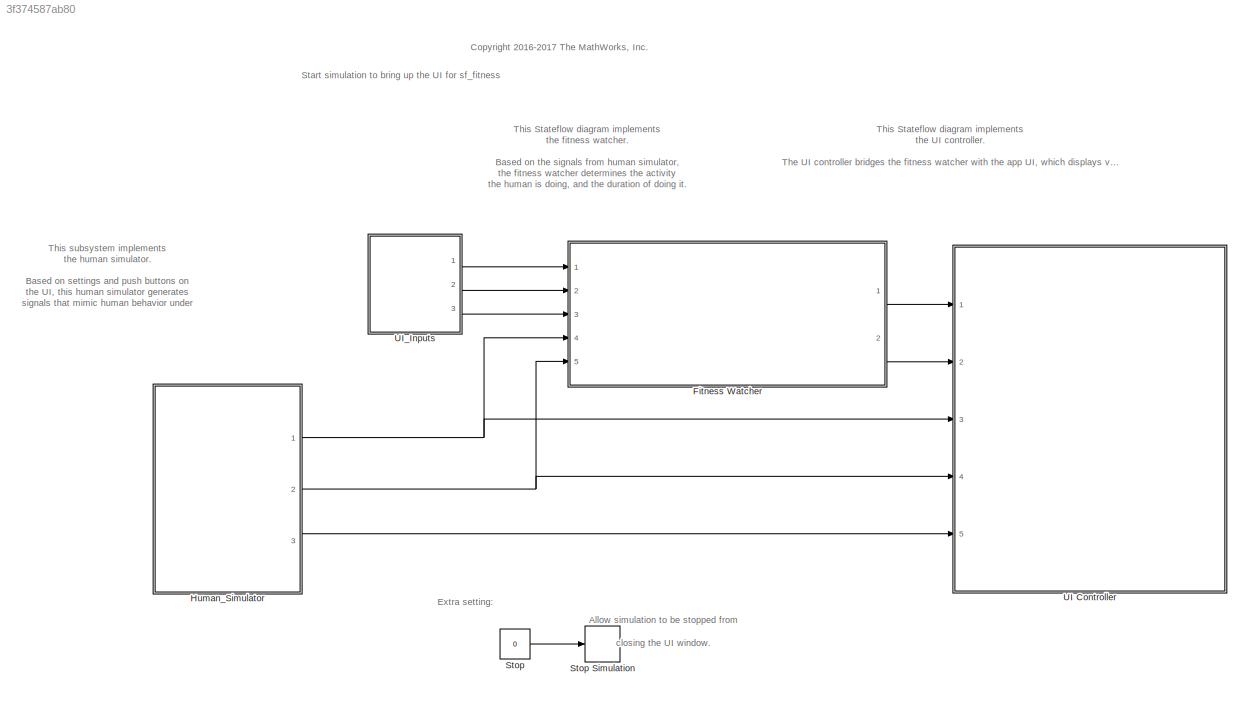
MODEL slx_3f374587ab80
KIND model
CONFIG AbsTol = auto
CONFIG EnableMultiTasking = on
CONFIG FixedStep = 0.001
CONFIG MaxStep = auto
CONFIG MinStep = auto
CONFIG RelTol = 1e-3
CONFIG SampleTimeConstraint = Unconstrained
CONFIG Solver = FixedStepAuto
CONFIG SolverName = FixedStepAuto
CONFIG StartTime = 0.0
CONFIG StopFcn = close all force;\nset_param('sf_fitness/Stop', 'Value', '0');
CONFIG StopTime = inf
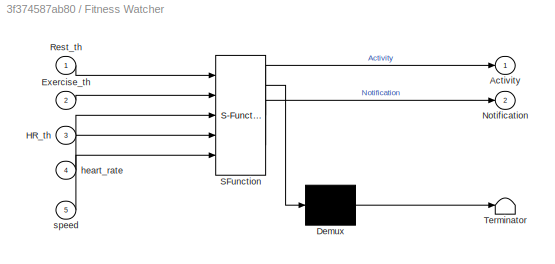
BLOCK [SubSystem] Fitness Watcher
  ErrorFcn = Stateflow.Translate.translate
  PermitHierarchicalResolution = ExplicitOnly
  Ports = [5, 2]
  RequestExecContextInheritance = off
  SFBlockType = Chart
  TreatAsAtomicUnit = on
  Variant = off
BLOCK [Demux] Fitness Watcher/ Demux 
  Outputs = 1
  Ports = [1, 1]
BLOCK [S-Function] Fitness Watcher/ SFunction 
  EnableBusSupport = off
  FunctionName = sf_sfun
  PortCounts = [5 3]
  Ports = [5, 3]
  SFcnIsStateOwnerBlock = off
  SFunctionDeploymentMode = off
  Tag = Stateflow S-Function sf_fitness 3
BLOCK [Terminator] Fitness Watcher/ Terminator 
BLOCK [Outport] Fitness Watcher/Activity
  IconDisplay = Port number
BLOCK [Inport] Fitness Watcher/Exercise_th
  IconDisplay = Port number
  Port = 2
BLOCK [Inport] Fitness Watcher/HR_th
  IconDisplay = Port number
  Port = 3
BLOCK [Outport] Fitness Watcher/Notification
  IconDisplay = Port number
  Port = 2
BLOCK [Inport] Fitness Watcher/Rest_th
  IconDisplay = Port number
BLOCK [Inport] Fitness Watcher/heart_rate
  IconDisplay = Port number
  Port = 4
BLOCK [Inport] Fitness Watcher/speed
  IconDisplay = Port number
  Port = 5
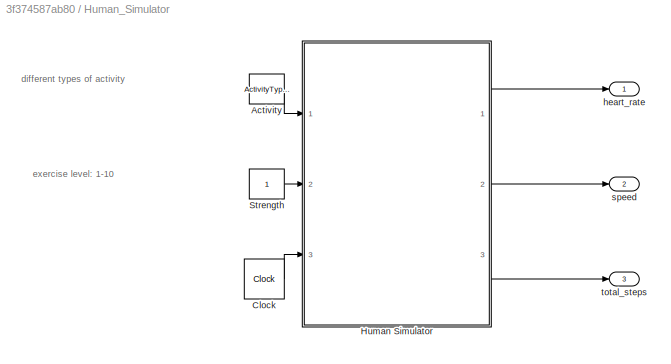
BLOCK [SubSystem] Human_Simulator
  Ports = [0, 3]
  RequestExecContextInheritance = off
  Variant = off
BLOCK [Constant] Human_Simulator/Activity
  Value = ActivityType.Walk
BLOCK [Clock] Human_Simulator/Clock
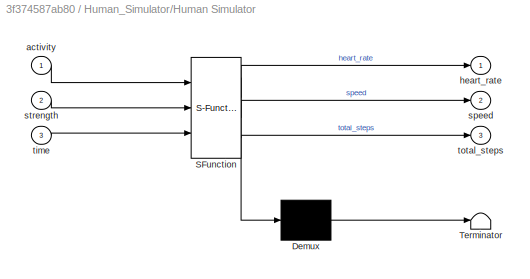
BLOCK [SubSystem] Human_Simulator/Human Simulator
  ErrorFcn = Stateflow.Translate.translate
  PermitHierarchicalResolution = ExplicitOnly
  Ports = [3, 3]
  RequestExecContextInheritance = off
  SFBlockType = Chart
  TreatAsAtomicUnit = on
  Variant = off
BLOCK [Demux] Human_Simulator/Human Simulator/ Demux 
  Outputs = 1
  Ports = [1, 1]
BLOCK [S-Function] Human_Simulator/Human Simulator/ SFunction 
  EnableBusSupport = off
  FunctionName = sf_sfun
  PortCounts = [3 4]
  Ports = [3, 4]
  SFcnIsStateOwnerBlock = off
  SFunctionDeploymentMode = off
  Tag = Stateflow S-Function sf_fitness 1
BLOCK [Terminator] Human_Simulator/Human Simulator/ Terminator 
BLOCK [Inport] Human_Simulator/Human Simulator/activity
  IconDisplay = Port number
BLOCK [Outport] Human_Simulator/Human Simulator/heart_rate
  IconDisplay = Port number
BLOCK [Outport] Human_Simulator/Human Simulator/speed
  IconDisplay = Port number
  Port = 2
BLOCK [Inport] Human_Simulator/Human Simulator/strength
  IconDisplay = Port number
  Port = 2
BLOCK [Inport] Human_Simulator/Human Simulator/time
  IconDisplay = Port number
  Port = 3
BLOCK [Outport] Human_Simulator/Human Simulator/total_steps
  IconDisplay = Port number
  Port = 3
BLOCK [Constant] Human_Simulator/Strength
BLOCK [Outport] Human_Simulator/heart_rate
  IconDisplay = Port number
BLOCK [Outport] Human_Simulator/speed
  IconDisplay = Port number
  Port = 2
BLOCK [Outport] Human_Simulator/total_steps
  IconDisplay = Port number
  Port = 3
BLOCK [Constant] Stop
  Value = 0
BLOCK [Stop] Stop Simulation
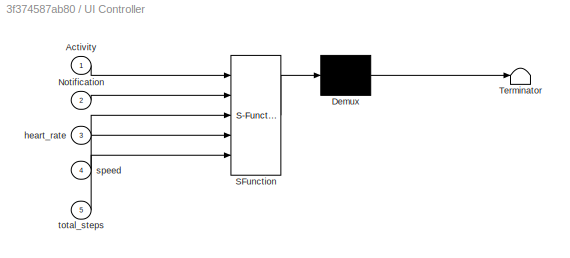
BLOCK [SubSystem] UI Controller
  ErrorFcn = Stateflow.Translate.translate
  PermitHierarchicalResolution = ExplicitOnly
  Ports = [5]
  RequestExecContextInheritance = off
  SFBlockType = Chart
  TreatAsAtomicUnit = on
  Variant = off
BLOCK [Demux] UI Controller/ Demux 
  Outputs = 1
  Ports = [1, 1]
BLOCK [S-Function] UI Controller/ SFunction 
  EnableBusSupport = off
  FunctionName = sf_sfun
  PortCounts = [5 1]
  Ports = [5, 1]
  SFcnIsStateOwnerBlock = off
  SFunctionDeploymentMode = off
  Tag = Stateflow S-Function sf_fitness 4
BLOCK [Terminator] UI Controller/ Terminator 
BLOCK [Inport] UI Controller/Activity
  IconDisplay = Port number
BLOCK [Inport] UI Controller/Notification
  IconDisplay = Port number
  Port = 2
BLOCK [Inport] UI Controller/heart_rate
  IconDisplay = Port number
  Port = 3
BLOCK [Inport] UI Controller/speed
  IconDisplay = Port number
  Port = 4
BLOCK [Inport] UI Controller/total_steps
  IconDisplay = Port number
  Port = 5
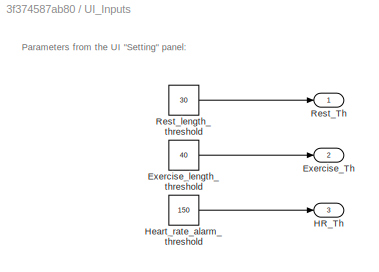
BLOCK [SubSystem] UI_Inputs
  Ports = [0, 3]
  RequestExecContextInheritance = off
  Variant = off
BLOCK [Outport] UI_Inputs/Exercise_Th
  IconDisplay = Port number
  Port = 2
BLOCK [Constant] UI_Inputs/Exercise_length_threshold
  Value = 40
BLOCK [Outport] UI_Inputs/HR_Th
  IconDisplay = Port number
  Port = 3
BLOCK [Constant] UI_Inputs/Heart_rate_alarm_threshold
  Value = 150
BLOCK [Outport] UI_Inputs/Rest_Th
  IconDisplay = Port number
BLOCK [Constant] UI_Inputs/Rest_length_threshold
  Value = 30
ANNOTATION (root): Start simulation to bring up the UI for sf_fitness
ANNOTATION (root): Allow simulation to be stopped from closing the UI window.
ANNOTATION (root): <copyright redacted>
ANNOTATION (root): Extra setting:
ANNOTATION (root): This Stateflow diagram implements the UI controller. The UI controller bridges the fitness watcher with the app UI, which displays vitals, number of steps, and notifications to the user.
ANNOTATION (root): This Stateflow diagram implements the fitness watcher. Based on the signals from human simulator, the fitness watcher determines the activity the human is doing, and the duration of doing it.
ANNOTATION (root): This subsystem implements the human simulator. Based on settings and push buttons on the UI, this human simulator generates signals that mimic human behavior under different conditions.
ANNOTATION Human_Simulator: different types of activity
ANNOTATION Human_Simulator: exercise level: 1-10
ANNOTATION UI_Inputs: Parameters from the UI "Setting" panel:
LINE Fitness Watcher:1 -> UI Controller:1
LINE Fitness Watcher:2 -> UI Controller:2
LINE Human_Simulator/Activity:1 -> Human_Simulator/Human Simulator:1
LINE Human_Simulator/Clock:1 -> Human_Simulator/Human Simulator:3
LINE Human_Simulator/Human Simulator:1 -> Human_Simulator/heart_rate:1
LINE Human_Simulator/Human Simulator:2 -> Human_Simulator/speed:1
LINE Human_Simulator/Human Simulator:3 -> Human_Simulator/total_steps:1
LINE Human_Simulator/Strength:1 -> Human_Simulator/Human Simulator:2
NET Human_Simulator:1 -> Fitness Watcher:4, UI Controller:3
NET Human_Simulator:2 -> Fitness Watcher:5, UI Controller:4
LINE Human_Simulator:3 -> UI Controller:5
LINE Stop:1 -> Stop Simulation:1
LINE UI_Inputs/Exercise_length_threshold:1 -> UI_Inputs/Exercise_Th:1
LINE UI_Inputs/Heart_rate_alarm_threshold:1 -> UI_Inputs/HR_Th:1
LINE UI_Inputs/Rest_length_threshold:1 -> UI_Inputs/Rest_Th:1
LINE UI_Inputs:1 -> Fitness Watcher:1
LINE UI_Inputs:2 -> Fitness Watcher:2
LINE UI_Inputs:3 -> Fitness Watcher:3
note: NET lines group one-source signal fan-out (src -> all destinations, sorted); 1:1 wires keep LINE
CHART Human_Simulator/Human Simulator states=15 transitions=23
  STATE_LABEL 'Units for variables:\nspeed: number of steps per second\nheart_rate: beats per minute'
  STATE_LABEL 'Step_Tracker\nen: total_steps = 0;\n'
  STATE_LABEL 'A'
  STATE_LABEL 'B'
  STATE_LABEL '[after(1,sec)]{total_steps = total_steps + speed * 60;}'
  STATE_LABEL 'A'
  STATE_LABEL 'B'
  STATE_LABEL 'Simulator\nen: heart_rate = 75; speed = 0;\ndu: '
  STATE_LABEL 'Init'
  STATE_LABEL 'Sim_Sleep\nen: oldhr = heart_rate; olds = speed; oldt = time;\ndu:\n[heart_rate, speed] = sim_sleep(oldhr, olds, time-oldt);'
  STATE_LABEL 'Sim_Rest\nen: oldhr = heart_rate; olds = speed; oldt = time;\ndu:\n[heart_rate, speed] = sim_rest(oldhr,olds, time-oldt);'
  STATE_LABEL 'Sim_Walk\nen: oldhr = heart_rate; olds = speed; oldt = time;\ndu:\n[heart_rate, speed] = sim_walk(oldhr, olds, time-oldt);'
  STATE_LABEL 'Sim_Exercise\nen: oldhr = heart_rate; olds = speed; oldt = time;\ndu:\n[heart_rate, speed] = sim_exercise(oldhr,olds, time-oldt, strength);'
  STATE_LABEL '[activity == ActivityType.Sleep]'
  STATE_LABEL '[activity == ActivityType.Rest]'
  STATE_LABEL '[activity == ActivityType.Walk]'
  STATE_LABEL '[activity == ActivityType.Exercise]'
  STATE_LABEL '[hasChanged(activity)]'
  STATE_LABEL 'Init'
  STATE_LABEL 'Sim_Sleep\nen: oldhr = heart_rate; olds = speed; oldt = time;\ndu:\n[heart_rate, speed] = sim_sleep(oldhr, olds, time-oldt);'
  STATE_LABEL 'Sim_Rest\nen: oldhr = heart_rate; olds = speed; oldt = time;\ndu:\n[heart_rate, speed] = sim_rest(oldhr,olds, time-oldt);'
  STATE_LABEL 'Sim_Walk\nen: oldhr = heart_rate; olds = speed; oldt = time;\ndu:\n[heart_rate, speed] = sim_walk(oldhr, olds, time-oldt);'
  STATE_LABEL 'Sim_Exercise\nen: oldhr = heart_rate; olds = speed; oldt = time;\ndu:\n[heart_rate, speed] = sim_exercise(oldhr,olds, time-oldt, strength);'
  STATE_LABEL 'result = transition(old, target, t)'
  STATE_LABEL 'SCRIPT:\nfunction result = transition(old, target, t)\n    \n    % use linear transition\n    if t < 1 % all transition finish in 1 s; improve this later\n        result = old + t * (target - old);\n    else\n        result = target;\n    end\n    \nend\n\n'
  STATE_LABEL '[heartRate, Speed] = sim_sleep(oldHR, oldS, newTime)'
  STATE_LABEL 'SCRIPT:\nfunction [heartRate, Speed] = sim_sleep(oldHR, oldS, newTime)\n   \ntarget = 68;\n\n% call transition function from oldHR to target\nheartRate = transition(oldHR, target, newTime);\n% update exercising speed\nSpeed = transition(oldS, 0, newTime);\n    \nend\n \n'
  STATE_LABEL '[heartRate, Speed] = sim_rest(oldHR, oldS, newTime)'
  STATE_LABEL 'SCRIPT:\nfunction [heartRate, Speed] = sim_rest(oldHR, oldS, newTime)\n   \ntarget = 75;\n\n% call transition function from oldHR to target\nheartRate = transition(oldHR, target, newTime);\n% update exercising speed\nSpeed = transition(oldS, 0, newTime);\n    \nend\n \n'
  STATE_LABEL '[heartRate, Speed] = sim_walk(oldHR, oldS, newTime)'
  STATE_LABEL 'SCRIPT:\nfunction [heartRate, Speed] = sim_walk(oldHR, oldS, newTime)\n   \ntarget = 85;\n\n% call transition function from oldHR to target\nheartRate = transition(oldHR, target, newTime);\n% update exercising speed\nSpeed = transition(oldS, 2, newTime);\n    \nend\n \n'
  STATE_LABEL '[heartRate, Speed] = sim_exercise(oldHR, oldS, newTime, Strength)'
  STATE_LABEL 'SCRIPT:\nfunction [heartRate, Speed] = sim_exercise(oldHR, oldS, newTime, Strength)\n\n% strength is exercise level 1- 10\ntarget = 85 + Strength * 8;\n\n% call transition function from oldHR to target\nheartRate = transition(oldHR, target, newTime);\n% update exercising speed\n% assume walk speed is 5\nSpeed = transition(oldS, (2 + 0.5 * Strength), newTime);\n\nend\n \n'
CHART Fitness Watcher states=20 transitions=28
  STATE_LABEL 'This chart has output activity monitoring child state activity, so the UI controller chart can display the detected activity. \nEach state can send a Stateflow message, Notification, to the UI controller chart for notifications to be displayed such as Need_Exercise, Need_Rest etc.\nLocal data with initial value: sleep_heart_rate = 68 beats/minute; rest_heart_rate = 75 beats/minute; walk_speed = 2 st...<+11ch>'
  STATE_LABEL 'Sleep\nexit:\nlen = elapsed();\nsendNotification(len);\n'
  STATE_LABEL 'sendNotification(l)'
  STATE_LABEL '{Notification.data = sf_fitness_NotificationType.Sleep_Len; send(Notification);}'
  STATE_LABEL '[l>5]'
  STATE_LABEL 'sendNotification(l)'
  STATE_LABEL '{Notification.data = sf_fitness_NotificationType.Sleep_Len; send(Notification);}'
  STATE_LABEL '[l>5]'
  STATE_LABEL 'Rest\n\n'
  STATE_LABEL 'Init'
  STATE_LABEL 'Send\nen:\nNotification.data = sf_fitness_NotificationType.Need_Exercise;\nsend(Notification);'
  STATE_LABEL '[after(Rest_th, sec)]'
  STATE_LABEL 'Init'
  STATE_LABEL 'Send\nen:\nNotification.data = sf_fitness_NotificationType.Need_Exercise;\nsend(Notification);'
  STATE_LABEL 'Exercise\n'
  STATE_LABEL 'Timer'
  STATE_LABEL 'Init'
  STATE_LABEL 'Send\nen:\nNotification.data = sf_fitness_NotificationType.Need_Rest;\nsend(Notification);'
  STATE_LABEL '[after(Exercise_th, sec)]'
  STATE_LABEL 'Exercise_Level'
  STATE_LABEL 'Light_Exercise\n\n\n'
  STATE_LABEL 'Athlete\n\n'
  STATE_LABEL 'Init'
  STATE_LABEL 'Send\nen:\nNotification.data = sf_fitness_NotificationType.Slow_Down;\nsend(Notification);'
  STATE_LABEL 'after(15,sec)'
  STATE_LABEL 'Overheat\n\n    \n'
  STATE_LABEL 'Init'
  STATE_LABEL 'Send\nen:\nNotification.data = sf_fitness_NotificationType.Must_Stop;\nsend(Notification);'
  STATE_LABEL '[after(2,sec)]'
  STATE_LABEL '[speed > 4]'
  STATE_LABEL '[duration(heart_rate>HR_th) > 1]'
  STATE_LABEL '[heart_rate < HR_th]'
  STATE_LABEL '[speed < 4]'
  STATE_LABEL 'Timer'
  STATE_LABEL 'Init'
  STATE_LABEL 'Send\nen:\nNotification.data = sf_fitness_NotificationType.Need_Rest;\nsend(Notification);'
  STATE_LABEL '[after(Exercise_th, sec)]'
  STATE_LABEL 'Init'
  STATE_LABEL 'Send\nen:\nNotification.data = sf_fitness_NotificationType.Need_Rest;\nsend(Notification);'
  STATE_LABEL 'Exercise_Level'
CHART UI Controller states=16 transitions=15
  STATE_LABEL "INIT\n% Initialize Appdesigner app and import the App's interface.\nen:\ncoder.extrinsic('sf_fitness_app', 'updateBeat', 'detectedActivity', 'updateSteps', 'updateClock', 'updateHeartRate', 'updateText');\napp = sf_fitness_app();"
  STATE_LABEL 'DISPLAY\n% Update different displays on the user interface designed by Appdesigner'
  STATE_LABEL 'Activity\n% Update detected activity'
  STATE_LABEL 'Idle\nen:steps = 0;\ndu: time = elapsed();\n'
  STATE_LABEL 'SetActivity\nentry:\ndetectedActivity(app, Activity);\n'
  STATE_LABEL '[hasChanged(Activity)]'
  STATE_LABEL 'Steps\n% Show stepping animation and total steps display\n'
  STATE_LABEL 'Still\n'
  STATE_LABEL 'Move\nen:\n'
  STATE_LABEL 'Idle'
  STATE_LABEL 'Update\nen: updateSteps(app, int32(total_steps));'
  STATE_LABEL '[after(1,sec)]{steps = steps + 60*speed;}'
  STATE_LABEL '[speed > 0.01]'
  STATE_LABEL '[speed < 0.01]'
  STATE_LABEL 'Vital\n\n'
  STATE_LABEL 'Update\nen:\n% Update heart beat animation and\n% heart rate display\ninterval = 60/heart_rate;\nupdateBeat(app,interval/2);\nupdateHeartRate(app, int32(heart_rate));'
  STATE_LABEL '[after(interval,sec)]'
  STATE_LABEL 'Notification_and_Clock'
  STATE_LABEL 'Clock\n% Keep clock going if no notification\n'
  STATE_LABEL 'Update\nen:\nupdateClock(app, t);'
  STATE_LABEL 'after(1, sec)'
  STATE_LABEL 'Send_UI_Notification\n% Replace clock with notification for 5 seconds\nen:\nupdateText(app, Notification.data, int32(time), int32(steps), t);\n'
  STATE_LABEL '[after(5, sec) ]'
  STATE_LABEL 'Notification'
  STATE_LABEL 'Activity\n% Update detected activity'
  STATE_LABEL 'Idle\nen:steps = 0;\ndu: time = elapsed();\n'
  STATE_LABEL 'SetActivity\nentry:\ndetectedActivity(app, Activity);\n'
  STATE_LABEL '[hasChanged(Activity)]'
  STATE_LABEL 'Idle\nen:steps = 0;\ndu: time = elapsed();\n'
  STATE_LABEL 'SetActivity\nentry:\ndetectedActivity(app, Activity);\n'
  STATE_LABEL 'Steps\n% Show stepping animation and total steps display\n'
  STATE_LABEL 'Still\n'
  STATE_LABEL 'Move\nen:\n'
  STATE_LABEL 'Idle'
  STATE_LABEL 'Update\nen: updateSteps(app, int32(total_steps));'
  STATE_LABEL '[after(1,sec)]{steps = steps + 60*speed;}'
  STATE_LABEL '[speed > 0.01]'
  STATE_LABEL '[speed < 0.01]'
  STATE_LABEL 'Still\n'
  STATE_LABEL 'Move\nen:\n'
